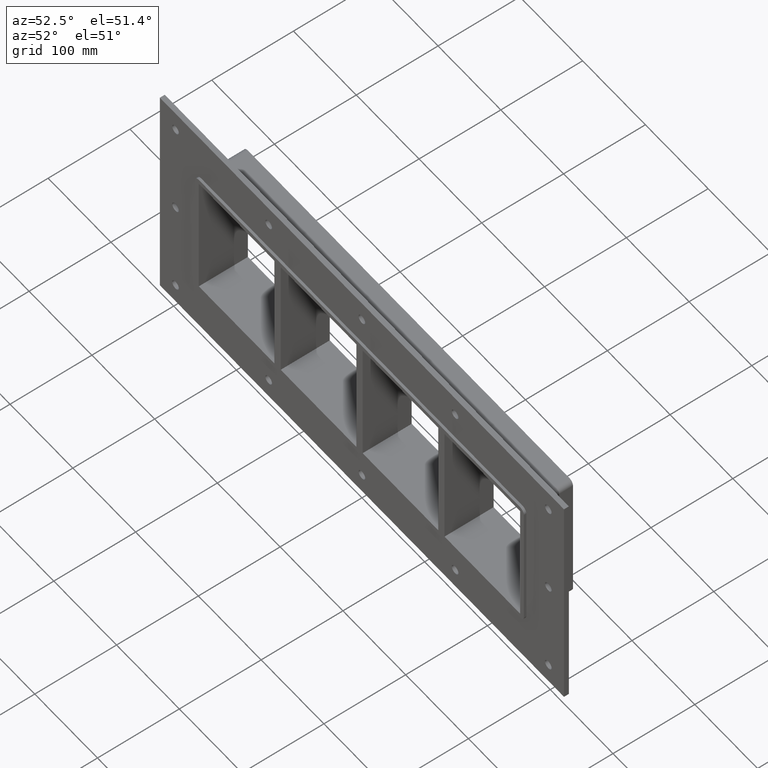
[diagram: clean part render]
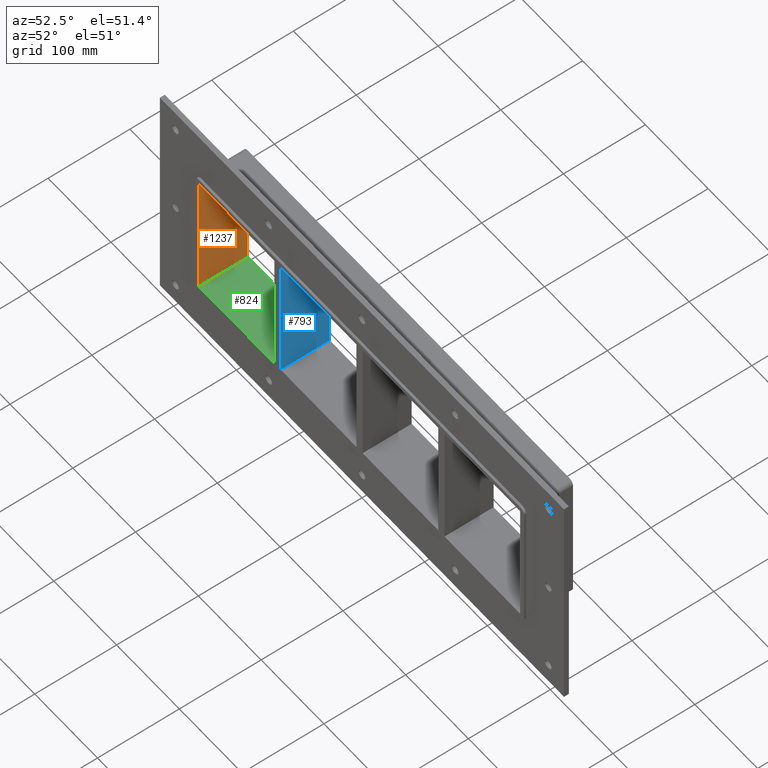
[diagram: same view with three faces highlighted in distinct colors, each labeled with its STEP entity id]
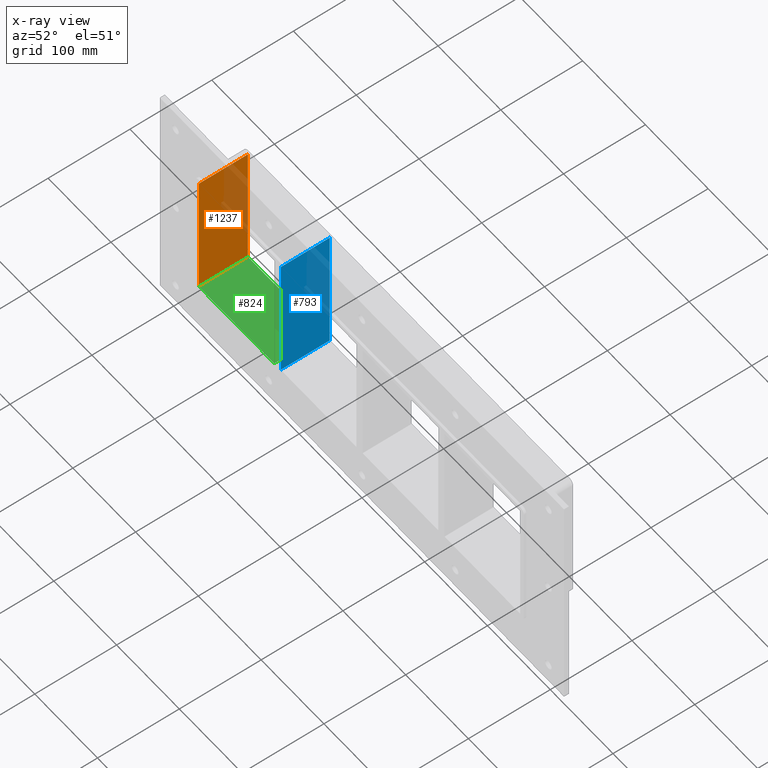
[diagram: x-ray of the same camera — body ghosted, the three highlighted faces saturated]
A machine part, auxiliary view with three faces highlighted in distinct colors.
The next image is the same camera in x-ray (body ghosted, the three faces saturated) — at least one of them is partly hidden behind the body in this view.
Their STEP definitions:

[orange] entity #1237 — the highlighted planar face has unit normal (-1, 0, 0).
#800=CARTESIAN_POINT('',(-256.00000000000006,57.0,-79.750000000000014));
#801=VERTEX_POINT('',#800);
#808=CARTESIAN_POINT('',(-256.00000000000006,-3.0,-79.750000000000014));
#809=VERTEX_POINT('',#808);
#810=CARTESIAN_POINT('',(-256.00000000000006,-3.0,-79.750000000000014));
#811=DIRECTION('',(0.0,1.0,0.0));
#812=VECTOR('',#811,60.0);
#813=LINE('',#810,#812);
#814=EDGE_CURVE('',#809,#801,#813,.T.);
#831=CARTESIAN_POINT('',(-256.00000000000006,-3.0,79.750000000000014));
#832=VERTEX_POINT('',#831);
#839=CARTESIAN_POINT('',(-256.00000000000006,57.0,79.750000000000014));
#840=VERTEX_POINT('',#839);
#841=CARTESIAN_POINT('',(-256.00000000000006,-3.0,79.750000000000014));
#842=DIRECTION('',(0.0,1.0,0.0));
#843=VECTOR('',#842,60.0);
#844=LINE('',#841,#843);
#845=EDGE_CURVE('',#832,#840,#844,.T.);
#1216=CARTESIAN_POINT('',(-256.00000000000006,0.0,-79.750000000000014));
#1217=DIRECTION('',(-1.0,0.0,0.0));
#1218=DIRECTION('',(0.0,0.0,1.0));
#1219=AXIS2_PLACEMENT_3D('',#1216,#1217,#1218);
#1220=PLANE('',#1219);
#1221=ORIENTED_EDGE('',*,*,#814,.T.);
#1222=CARTESIAN_POINT('',(-256.00000000000006,57.0,79.750000000000028));
#1223=DIRECTION('',(0.0,0.0,-1.0));
#1224=VECTOR('',#1223,159.50000000000006);
#1225=LINE('',#1222,#1224);
#1226=EDGE_CURVE('',#840,#801,#1225,.T.);
#1227=ORIENTED_EDGE('',*,*,#1226,.F.);
#1228=ORIENTED_EDGE('',*,*,#845,.F.);
#1229=CARTESIAN_POINT('',(-256.00000000000006,-3.0,-79.750000000000014));
#1230=DIRECTION('',(0.0,0.0,1.0));
#1231=VECTOR('',#1230,159.50000000000006);
#1232=LINE('',#1229,#1231);
#1233=EDGE_CURVE('',#809,#832,#1232,.T.);
#1234=ORIENTED_EDGE('',*,*,#1233,.F.);
#1235=EDGE_LOOP('',(#1221,#1227,#1228,#1234));
#1236=FACE_OUTER_BOUND('',#1235,.T.);
#1237=ADVANCED_FACE('',(#1236),#1220,.F.);

[blue] entity #793 — the highlighted planar face has unit normal (1, 0, 0).
#570=CARTESIAN_POINT('',(-125.49999999999272,57.0,-79.749999999987168));
#571=VERTEX_POINT('',#570);
#578=CARTESIAN_POINT('',(-125.49999999999272,-3.0,-79.749999999987168));
#579=VERTEX_POINT('',#578);
#580=CARTESIAN_POINT('',(-125.49999999999274,57.000000000000007,-79.750000000000014));
#581=DIRECTION('',(0.0,-1.0,0.0));
#582=VECTOR('',#581,60.000000000000007);
#583=LINE('',#580,#582);
#584=EDGE_CURVE('',#571,#579,#583,.T.);
#654=CARTESIAN_POINT('',(-125.49999999999272,-3.0,79.750000000000014));
#655=VERTEX_POINT('',#654);
#662=CARTESIAN_POINT('',(-125.49999999999272,57.0,79.750000000000014));
#663=VERTEX_POINT('',#662);
#664=CARTESIAN_POINT('',(-125.49999999999274,-3.0,79.750000000000014));
#665=DIRECTION('',(0.0,1.0,0.0));
#666=VECTOR('',#665,60.000000000000007);
#667=LINE('',#664,#666);
#668=EDGE_CURVE('',#655,#663,#667,.T.);
#772=CARTESIAN_POINT('',(-125.49999999999272,-3.0,79.750000000000014));
#773=DIRECTION('',(1.0,0.0,0.0));
#774=DIRECTION('',(0.0,0.0,-1.0));
#775=AXIS2_PLACEMENT_3D('',#772,#773,#774);
#776=PLANE('',#775);
#777=CARTESIAN_POINT('',(-125.49999999999272,-3.0,79.750000000000014));
#778=DIRECTION('',(0.0,0.0,-1.0));
#779=VECTOR('',#778,159.49999999998718);
#780=LINE('',#777,#779);
#781=EDGE_CURVE('',#655,#579,#780,.T.);
#782=ORIENTED_EDGE('',*,*,#781,.T.);
#783=ORIENTED_EDGE('',*,*,#584,.F.);
#784=CARTESIAN_POINT('',(-125.49999999999272,57.0,79.750000000000014));
#785=DIRECTION('',(0.0,0.0,-1.0));
#786=VECTOR('',#785,159.49999999998718);
#787=LINE('',#784,#786);
#788=EDGE_CURVE('',#663,#571,#787,.T.);
#789=ORIENTED_EDGE('',*,*,#788,.F.);
#790=ORIENTED_EDGE('',*,*,#668,.F.);
#791=EDGE_LOOP('',(#782,#783,#789,#790));
#792=FACE_OUTER_BOUND('',#791,.T.);
#793=ADVANCED_FACE('',(#792),#776,.T.);

[green] entity #824 — the highlighted planar face has unit normal (0, 0, -1).
#737=CARTESIAN_POINT('',(-135.50000000000207,-3.0,-79.750000000000014));
#738=VERTEX_POINT('',#737);
#755=CARTESIAN_POINT('',(-135.50000000000207,57.0,-79.750000000000014));
#756=VERTEX_POINT('',#755);
#763=CARTESIAN_POINT('',(-135.50000000000207,-3.0,-79.750000000000014));
#764=DIRECTION('',(0.0,1.0,0.0));
#765=VECTOR('',#764,60.000000000000007);
#766=LINE('',#763,#765);
#767=EDGE_CURVE('',#738,#756,#766,.T.);
#794=CARTESIAN_POINT('',(256.00000000000006,0.0,-79.750000000000014));
#795=DIRECTION('',(0.0,0.0,-1.0));
#796=DIRECTION('',(-1.0,0.0,0.0));
#797=AXIS2_PLACEMENT_3D('',#794,#795,#796);
#798=PLANE('',#797);
#799=ORIENTED_EDGE('',*,*,#767,.T.);
#800=CARTESIAN_POINT('',(-256.00000000000006,57.0,-79.750000000000014));
#801=VERTEX_POINT('',#800);
#802=CARTESIAN_POINT('',(-256.0,57.0,-79.750000000000014));
#803=DIRECTION('',(1.0,0.0,0.0));
#804=VECTOR('',#803,120.49999999999798);
#805=LINE('',#802,#804);
#806=EDGE_CURVE('',#801,#756,#805,.T.);
#807=ORIENTED_EDGE('',*,*,#806,.F.);
#808=CARTESIAN_POINT('',(-256.00000000000006,-3.0,-79.750000000000014));
#809=VERTEX_POINT('',#808);
#810=CARTESIAN_POINT('',(-256.00000000000006,-3.0,-79.750000000000014));
#811=DIRECTION('',(0.0,1.0,0.0));
#812=VECTOR('',#811,60.0);
#813=LINE('',#810,#812);
#814=EDGE_CURVE('',#809,#801,#813,.T.);
#815=ORIENTED_EDGE('',*,*,#814,.F.);
#816=CARTESIAN_POINT('',(-135.50000000000202,-3.0,-79.750000000000014));
#817=DIRECTION('',(-1.0,0.0,0.0));
#818=VECTOR('',#817,120.49999999999798);
#819=LINE('',#816,#818);
#820=EDGE_CURVE('',#738,#809,#819,.T.);
#821=ORIENTED_EDGE('',*,*,#820,.F.);
#822=EDGE_LOOP('',(#799,#807,#815,#821));
#823=FACE_OUTER_BOUND('',#822,.T.);
#824=ADVANCED_FACE('',(#823),#798,.F.);